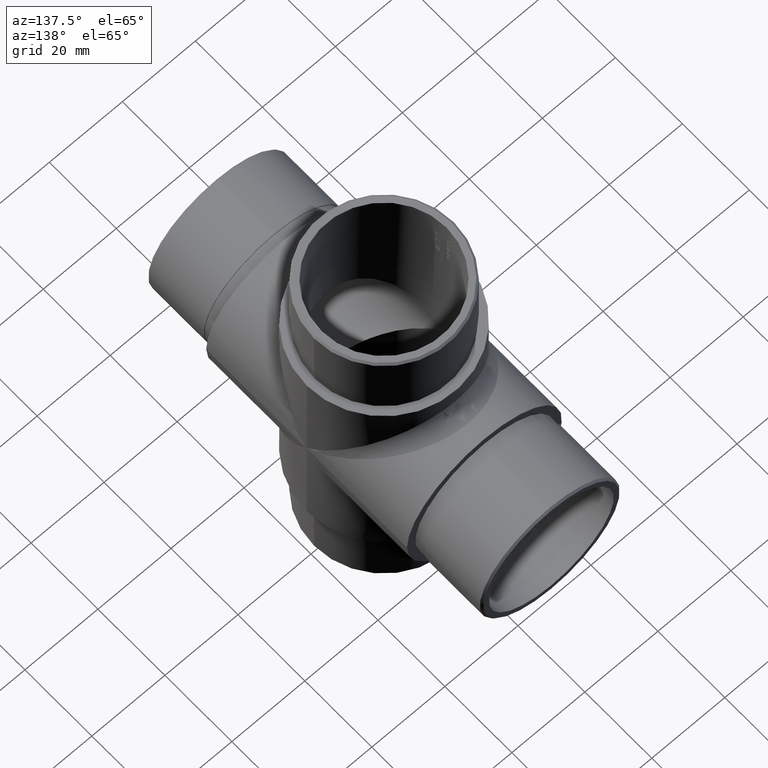
[diagram: clean part render]
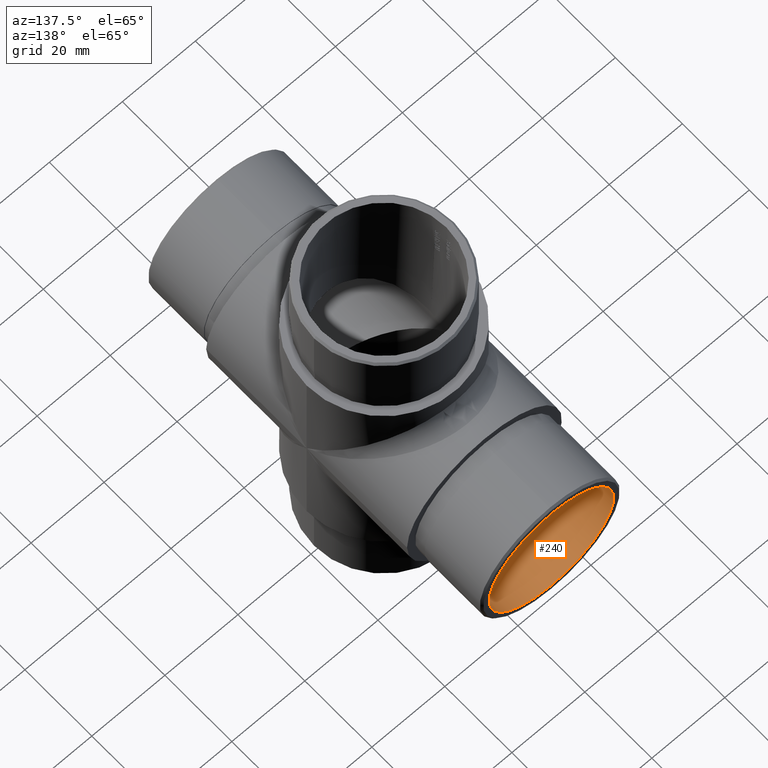
[diagram: same view with one face highlighted and labeled with its STEP entity id]
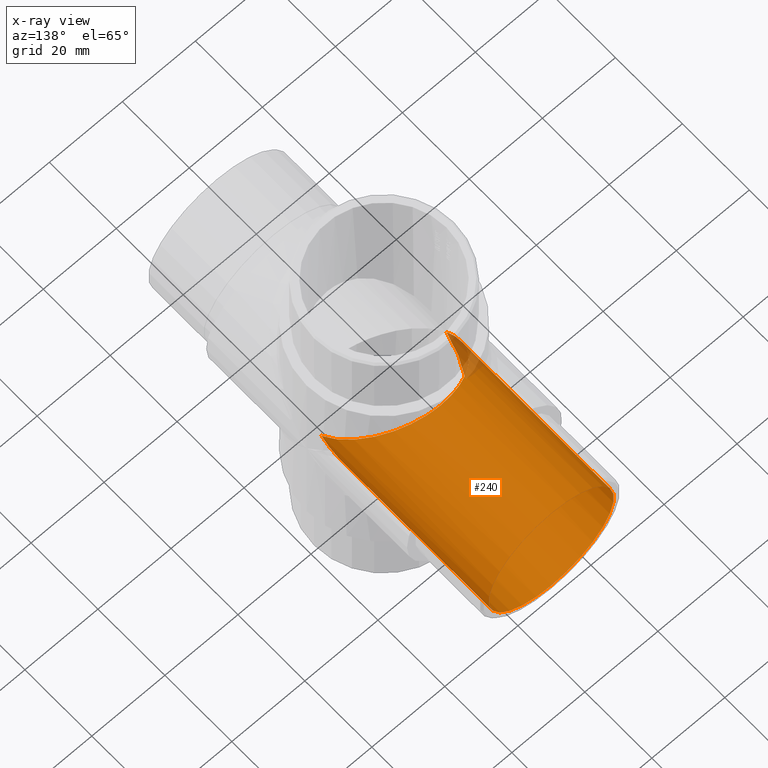
[diagram: x-ray of the same camera — body ghosted, the highlighted face saturated]
A machine part, auxiliary view. The second image highlights one B-rep face of the part: STEP entity #240.
The next image is the same camera in x-ray: the body ghosted, the highlighted face saturated — about 2% of this face is hidden behind the body in this view.
In plain terms, the highlighted cylindrical surface (bore or boss wall) has radius 17.1 mm, axis along (-0, 1, -0).
Its self-contained STEP definition (entity closure, byte-faithful):
#10 = ORIENTED_EDGE ( 'NONE', *, *, #8088, .T. ) ;
#236 = EDGE_CURVE ( 'NONE', #13039, #13039, #7895, .T. ) ;
#240 = ADVANCED_FACE ( 'NONE', ( #12196, #7076 ), #4347, .F. ) ;
#268 = VERTEX_POINT ( 'NONE', #3152 ) ;
#1044 = DIRECTION ( 'NONE',  ( 0.0000000000000000000, 1.000000000000000000, 0.0000000000000000000 ) ) ;
#1247 = CARTESIAN_POINT ( 'NONE',  ( 17.09999999999999800, 0.0000000000000000000, 0.0000000000000000000 ) ) ;
#2210 = CARTESIAN_POINT ( 'NONE',  ( 17.09999999999999800, 0.0000000000000000000, 0.0000000000000000000 ) ) ;
#2511 = CARTESIAN_POINT ( 'NONE',  ( -17.09999999999999800, 0.0000000000000000000, 0.0000000000000000000 ) ) ;
#3152 = CARTESIAN_POINT ( 'NONE',  ( -17.09999999999999800, 0.0000000000000000000, 0.0000000000000000000 ) ) ;
#3254 = CARTESIAN_POINT ( 'NONE',  ( 17.09999999999999100, 34.19999999999998200, -34.19999999999998200 ) ) ;
#3620 = CARTESIAN_POINT ( 'NONE',  ( 17.10000000000000100, 34.19999999999998200, 34.19999999999998200 ) ) ;
#4347 = CYLINDRICAL_SURFACE ( 'NONE', #7500, 17.09999999999999800 ) ;
#5061 = ORIENTED_EDGE ( 'NONE', *, *, #5374, .T. ) ;
#5374 = EDGE_CURVE ( 'NONE', #12952, #268, #10387, .T. ) ;
#5467 = CARTESIAN_POINT ( 'NONE',  ( -17.09999999999999100, 34.19999999999998200, 34.19999999999998200 ) ) ;
#5512 = CARTESIAN_POINT ( 'NONE',  ( -17.10000000000000100, 34.19999999999998200, -34.19999999999998200 ) ) ;
#5588 = AXIS2_PLACEMENT_3D ( 'NONE', #9253, #1044, #8497 ) ;
#7076 = FACE_OUTER_BOUND ( 'NONE', #10872, .T. ) ;
#7500 = AXIS2_PLACEMENT_3D ( 'NONE', #12313, #10213, #10259 ) ;
#7895 = CIRCLE ( 'NONE', #5588, 17.09999999999999800 ) ;
#8088 = EDGE_CURVE ( 'NONE', #268, #12952, #9178, .T. ) ;
#8461 = CARTESIAN_POINT ( 'NONE',  ( 17.09999999999999800, 0.0000000000000000000, 0.0000000000000000000 ) ) ;
#8497 = DIRECTION ( 'NONE',  ( 0.0000000000000000000, 0.0000000000000000000, 1.000000000000000000 ) ) ;
#9178 =( BOUNDED_CURVE ( )  B_SPLINE_CURVE ( 3, ( #12551, #5512, #3254, #8461 ),
 .UNSPECIFIED., .F., .F. ) 
 B_SPLINE_CURVE_WITH_KNOTS ( ( 4, 4 ),
 ( 4.712388980384689700, 7.853981633974482800 ),
 .UNSPECIFIED. ) 
 CURVE ( )  GEOMETRIC_REPRESENTATION_ITEM ( )  RATIONAL_B_SPLINE_CURVE ( ( 1.000000000000000000, 0.3333333333333333700, 0.3333333333333333700, 1.000000000000000000 ) ) 
 REPRESENTATION_ITEM ( '' )  );
#9253 = CARTESIAN_POINT ( 'NONE',  ( 0.0000000000000000000, 50.00000000000000000, 0.0000000000000000000 ) ) ;
#10007 = ORIENTED_EDGE ( 'NONE', *, *, #236, .T. ) ;
#10140 = CARTESIAN_POINT ( 'NONE',  ( 0.0000000000000000000, 50.00000000000000000, 17.09999999999999800 ) ) ;
#10213 = DIRECTION ( 'NONE',  ( -0.0000000000000000000, 1.000000000000000000, -0.0000000000000000000 ) ) ;
#10259 = DIRECTION ( 'NONE',  ( 0.0000000000000000000, 0.0000000000000000000, 1.000000000000000000 ) ) ;
#10387 =( BOUNDED_CURVE ( )  B_SPLINE_CURVE ( 3, ( #2210, #3620, #5467, #2511 ),
 .UNSPECIFIED., .F., .F. ) 
 B_SPLINE_CURVE_WITH_KNOTS ( ( 4, 4 ),
 ( 4.712388980384689700, 7.853981633974482800 ),
 .UNSPECIFIED. ) 
 CURVE ( )  GEOMETRIC_REPRESENTATION_ITEM ( )  RATIONAL_B_SPLINE_CURVE ( ( 1.000000000000000000, 0.3333333333333333700, 0.3333333333333333700, 1.000000000000000000 ) ) 
 REPRESENTATION_ITEM ( '' )  );
#10872 = EDGE_LOOP ( 'NONE', ( #10007 ) ) ;
#12196 = FACE_OUTER_BOUND ( 'NONE', #12752, .T. ) ;
#12313 = CARTESIAN_POINT ( 'NONE',  ( 0.0000000000000000000, -30.00000000000000000, 0.0000000000000000000 ) ) ;
#12551 = CARTESIAN_POINT ( 'NONE',  ( -17.09999999999999800, 0.0000000000000000000, 0.0000000000000000000 ) ) ;
#12752 = EDGE_LOOP ( 'NONE', ( #5061, #10 ) ) ;
#12952 = VERTEX_POINT ( 'NONE', #1247 ) ;
#13039 = VERTEX_POINT ( 'NONE', #10140 ) ;